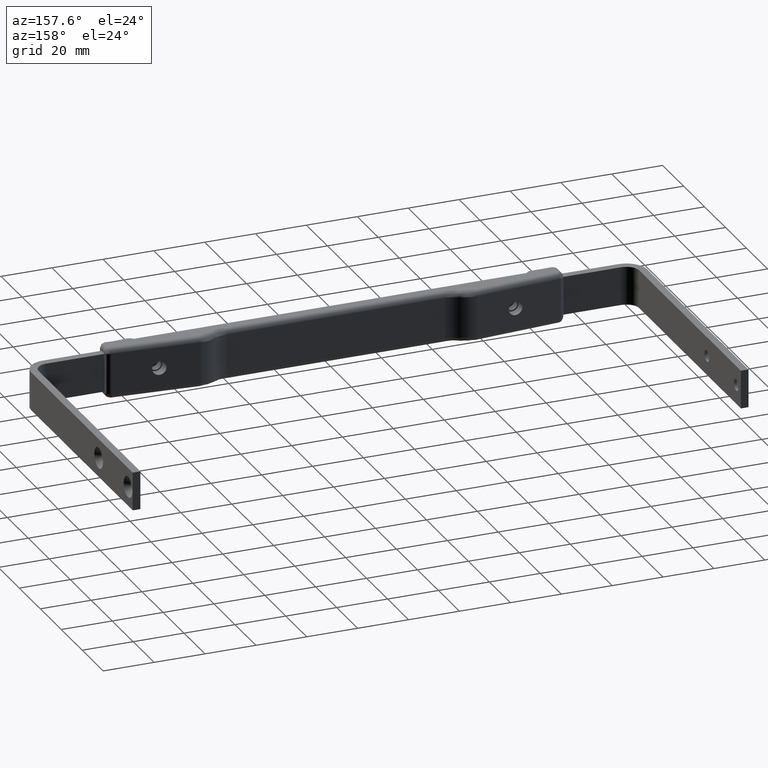
[diagram: clean part render]
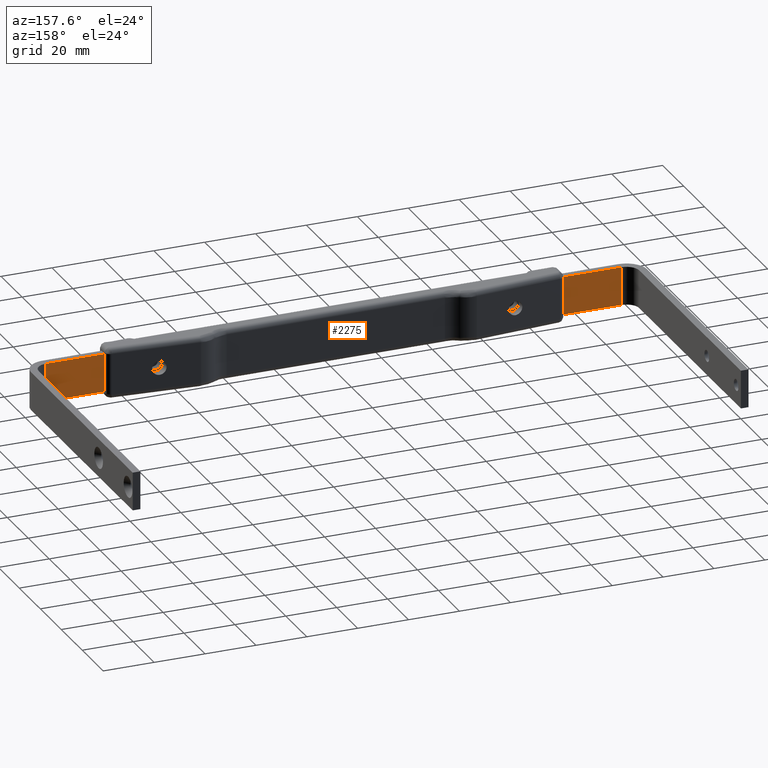
[diagram: same view with one face highlighted and labeled with its STEP entity id]
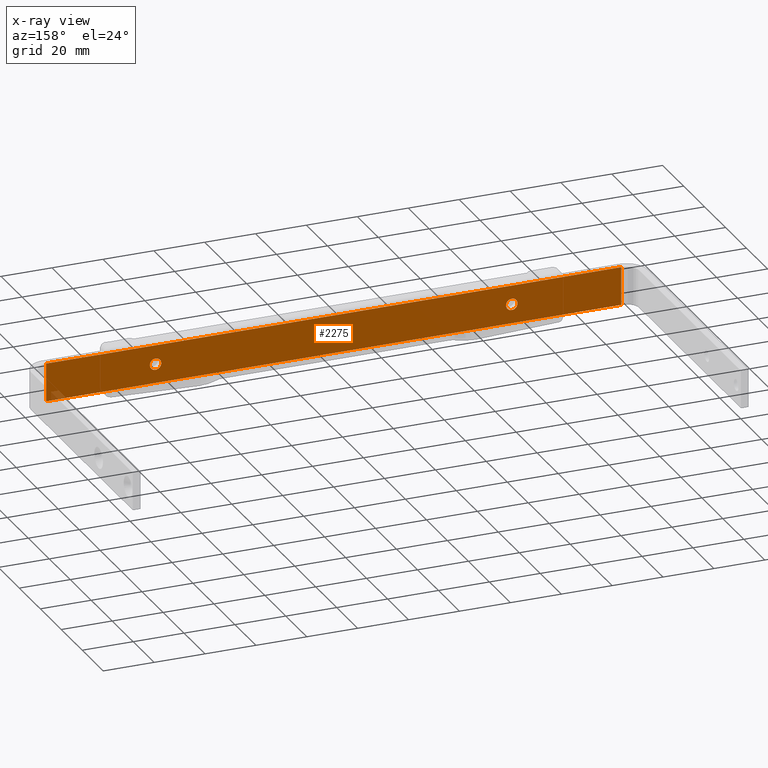
[diagram: x-ray of the same camera — body ghosted, the highlighted face saturated]
A machine part, auxiliary view. The second image highlights one B-rep face of the part: STEP entity #2275.
The next image is the same camera in x-ray: the body ghosted, the highlighted face saturated — about 0% of this face is hidden behind the body in this view.
In plain terms, the highlighted face is a freeform B-spline surface patch.
Its self-contained STEP definition (entity closure, byte-faithful):
#62=CARTESIAN_POINT('',(-67.750000000000000,0.0,-3.000000000000225));
#63=VERTEX_POINT('',#62);
#64=CARTESIAN_POINT('',(-69.823467034557439,-2.243064000895215,-3.000000000000226));
#65=VERTEX_POINT('',#64);
#66=CARTESIAN_POINT('',(-67.750000000000000,0.0,-3.000000000000225));
#67=CARTESIAN_POINT('',(-67.750000000000014,-2.079878606128802,-3.000000000000225));
#68=CARTESIAN_POINT('',(-69.823467034557439,-2.243064000895215,-3.000000000000226));
#76=(BOUNDED_CURVE()B_SPLINE_CURVE(2,(#66,#67,#68),.UNSPECIFIED.,.F.,.U.)B_SPLINE_CURVE_WITH_KNOTS((3,3),(0.0,0.236331300624372),.UNSPECIFIED.)CURVE()GEOMETRIC_REPRESENTATION_ITEM()RATIONAL_B_SPLINE_CURVE((1.0,0.723120658615032,0.969723356154297))REPRESENTATION_ITEM(''));
#77=EDGE_CURVE('',#63,#65,#76,.T.);
#118=CARTESIAN_POINT('',(-70.176532965442590,2.243064000895215,-3.000000000000225));
#119=VERTEX_POINT('',#118);
#125=CARTESIAN_POINT('',(-70.176532965442590,2.243064000895215,-3.000000000000225));
#126=CARTESIAN_POINT('',(-70.088402740822431,2.250000000000000,-3.000000000000225));
#127=CARTESIAN_POINT('',(-70.0,2.250000000000000,-3.000000000000225));
#128=CARTESIAN_POINT('',(-67.750000000000000,2.250000000000000,-3.000000000000226));
#129=CARTESIAN_POINT('',(-67.750000000000000,0.0,-3.000000000000225));
#137=(BOUNDED_CURVE()B_SPLINE_CURVE(2,(#125,#126,#127,#128,#129),.UNSPECIFIED.,.F.,.U.)B_SPLINE_CURVE_WITH_KNOTS((3,2,3),(0.736331300624372,0.750000000000000,1.0),.UNSPECIFIED.)CURVE()GEOMETRIC_REPRESENTATION_ITEM()RATIONAL_B_SPLINE_CURVE((0.969723356154295,0.983986122571515,1.0,0.707106781186547,1.0))REPRESENTATION_ITEM(''));
#138=EDGE_CURVE('',#119,#63,#137,.T.);
#161=CARTESIAN_POINT('',(-72.250000000000014,0.0,-3.000000000000225));
#162=VERTEX_POINT('',#161);
#163=CARTESIAN_POINT('',(-69.823467034557439,-2.243064000895215,-3.000000000000225));
#164=CARTESIAN_POINT('',(-69.911597259177569,-2.250000000000000,-3.000000000000226));
#165=CARTESIAN_POINT('',(-70.0,-2.250000000000000,-3.000000000000225));
#166=CARTESIAN_POINT('',(-72.250000000000028,-2.250000000000000,-3.000000000000226));
#167=CARTESIAN_POINT('',(-72.250000000000014,0.0,-3.000000000000225));
#175=(BOUNDED_CURVE()B_SPLINE_CURVE(2,(#163,#164,#165,#166,#167),.UNSPECIFIED.,.F.,.U.)B_SPLINE_CURVE_WITH_KNOTS((3,2,3),(0.236331300624372,0.250000000000000,0.500000000000000),.UNSPECIFIED.)CURVE()GEOMETRIC_REPRESENTATION_ITEM()RATIONAL_B_SPLINE_CURVE((0.969723356154297,0.983986122571516,1.0,0.707106781186547,1.0))REPRESENTATION_ITEM(''));
#176=EDGE_CURVE('',#65,#162,#175,.T.);
#178=CARTESIAN_POINT('',(-72.250000000000014,0.0,-3.000000000000225));
#179=CARTESIAN_POINT('',(-72.250000000000014,2.079878606128780,-3.000000000000226));
#180=CARTESIAN_POINT('',(-70.176532965442590,2.243064000895215,-3.000000000000225));
#188=(BOUNDED_CURVE()B_SPLINE_CURVE(2,(#178,#179,#180),.UNSPECIFIED.,.F.,.U.)B_SPLINE_CURVE_WITH_KNOTS((3,3),(0.500000000000000,0.736331300624371),.UNSPECIFIED.)CURVE()GEOMETRIC_REPRESENTATION_ITEM()RATIONAL_B_SPLINE_CURVE((1.0,0.723120658615034,0.969723356154293))REPRESENTATION_ITEM(''));
#189=EDGE_CURVE('',#162,#119,#188,.T.);
#244=CARTESIAN_POINT('',(72.250000000000014,0.0,-3.000000000000225));
#245=VERTEX_POINT('',#244);
#246=CARTESIAN_POINT('',(70.176532965442576,-2.243064000895215,-3.000000000000225));
#247=VERTEX_POINT('',#246);
#248=CARTESIAN_POINT('',(72.250000000000014,0.0,-3.000000000000225));
#249=CARTESIAN_POINT('',(72.250000000000028,-2.079878606128788,-3.000000000000225));
#250=CARTESIAN_POINT('',(70.176532965442576,-2.243064000895215,-3.000000000000225));
#258=(BOUNDED_CURVE()B_SPLINE_CURVE(2,(#248,#249,#250),.UNSPECIFIED.,.F.,.U.)B_SPLINE_CURVE_WITH_KNOTS((3,3),(0.0,0.236331300624371),.UNSPECIFIED.)CURVE()GEOMETRIC_REPRESENTATION_ITEM()RATIONAL_B_SPLINE_CURVE((1.0,0.723120658615033,0.969723356154295))REPRESENTATION_ITEM(''));
#259=EDGE_CURVE('',#245,#247,#258,.T.);
#300=CARTESIAN_POINT('',(69.823467034557410,2.243064000895214,-3.000000000000225));
#301=VERTEX_POINT('',#300);
#307=CARTESIAN_POINT('',(69.823467034557410,2.243064000895215,-3.000000000000225));
#308=CARTESIAN_POINT('',(69.911597259177555,2.250000000000000,-3.000000000000225));
#309=CARTESIAN_POINT('',(70.0,2.250000000000000,-3.000000000000225));
#310=CARTESIAN_POINT('',(72.250000000000028,2.250000000000000,-3.000000000000226));
#311=CARTESIAN_POINT('',(72.250000000000014,0.0,-3.000000000000225));
#319=(BOUNDED_CURVE()B_SPLINE_CURVE(2,(#307,#308,#309,#310,#311),.UNSPECIFIED.,.F.,.U.)B_SPLINE_CURVE_WITH_KNOTS((3,2,3),(0.736331300624371,0.750000000000000,1.0),.UNSPECIFIED.)CURVE()GEOMETRIC_REPRESENTATION_ITEM()RATIONAL_B_SPLINE_CURVE((0.969723356154293,0.983986122571514,1.0,0.707106781186547,1.0))REPRESENTATION_ITEM(''));
#320=EDGE_CURVE('',#301,#245,#319,.T.);
#343=CARTESIAN_POINT('',(67.750000000000000,0.0,-3.000000000000225));
#344=VERTEX_POINT('',#343);
#345=CARTESIAN_POINT('',(70.176532965442576,-2.243064000895215,-3.000000000000225));
#346=CARTESIAN_POINT('',(70.088402740822445,-2.250000000000000,-3.000000000000226));
#347=CARTESIAN_POINT('',(70.0,-2.250000000000000,-3.000000000000225));
#348=CARTESIAN_POINT('',(67.750000000000000,-2.250000000000000,-3.000000000000226));
#349=CARTESIAN_POINT('',(67.750000000000000,0.0,-3.000000000000225));
#357=(BOUNDED_CURVE()B_SPLINE_CURVE(2,(#345,#346,#347,#348,#349),.UNSPECIFIED.,.F.,.U.)B_SPLINE_CURVE_WITH_KNOTS((3,2,3),(0.236331300624371,0.250000000000000,0.500000000000000),.UNSPECIFIED.)CURVE()GEOMETRIC_REPRESENTATION_ITEM()RATIONAL_B_SPLINE_CURVE((0.969723356154295,0.983986122571515,1.0,0.707106781186547,1.0))REPRESENTATION_ITEM(''));
#358=EDGE_CURVE('',#247,#344,#357,.T.);
#360=CARTESIAN_POINT('',(67.750000000000000,0.0,-3.000000000000225));
#361=CARTESIAN_POINT('',(67.750000000000000,2.079878606128780,-3.000000000000226));
#362=CARTESIAN_POINT('',(69.823467034557410,2.243064000895215,-3.000000000000225));
#370=(BOUNDED_CURVE()B_SPLINE_CURVE(2,(#360,#361,#362),.UNSPECIFIED.,.F.,.U.)B_SPLINE_CURVE_WITH_KNOTS((3,3),(0.500000000000000,0.736331300624371),.UNSPECIFIED.)CURVE()GEOMETRIC_REPRESENTATION_ITEM()RATIONAL_B_SPLINE_CURVE((1.0,0.723120658615034,0.969723356154293))REPRESENTATION_ITEM(''));
#371=EDGE_CURVE('',#344,#301,#370,.T.);
#1780=CARTESIAN_POINT('',(-113.0,-7.500000000000000,-3.000000000000200));
#1781=VERTEX_POINT('',#1780);
#1795=CARTESIAN_POINT('',(113.0,-7.500000000000000,-3.0));
#1796=VERTEX_POINT('',#1795);
#1797=CARTESIAN_POINT('',(113.0,-7.500000000000000,-3.0));
#1798=CARTESIAN_POINT('',(-113.0,-7.500000000000000,-3.000000000000200));
#1799=QUASI_UNIFORM_CURVE('',1,(#1797,#1798),.UNSPECIFIED.,.F.,.U.);
#1800=EDGE_CURVE('',#1796,#1781,#1799,.T.);
#1948=CARTESIAN_POINT('',(113.0,7.499999999999840,-3.0));
#1949=VERTEX_POINT('',#1948);
#1963=CARTESIAN_POINT('',(-113.0,7.499999999999840,-3.000000000000200));
#1964=VERTEX_POINT('',#1963);
#1965=CARTESIAN_POINT('',(113.0,7.499999999999840,-3.0));
#1966=CARTESIAN_POINT('',(-113.0,7.499999999999840,-3.000000000000200));
#1967=QUASI_UNIFORM_CURVE('',1,(#1965,#1966),.UNSPECIFIED.,.F.,.U.);
#1968=EDGE_CURVE('',#1949,#1964,#1967,.T.);
#2065=CARTESIAN_POINT('',(-113.0,7.499999999999840,-3.000000000000200));
#2066=CARTESIAN_POINT('',(-113.0,-7.500000000000000,-3.000000000000200));
#2067=QUASI_UNIFORM_CURVE('',1,(#2065,#2066),.UNSPECIFIED.,.F.,.U.);
#2068=EDGE_CURVE('',#1964,#1781,#2067,.T.);
#2088=CARTESIAN_POINT('',(113.0,7.499999999999840,-3.0));
#2089=CARTESIAN_POINT('',(113.0,-7.500000000000000,-3.0));
#2090=QUASI_UNIFORM_CURVE('',1,(#2088,#2089),.UNSPECIFIED.,.F.,.U.);
#2091=EDGE_CURVE('',#1949,#1796,#2090,.T.);
#2252=CARTESIAN_POINT('',(-124.288699561968200,-8.249249970927080,-3.000000000000200));
#2253=CARTESIAN_POINT('',(124.288705623760510,-8.249249970927080,-3.000000000000200));
#2254=CARTESIAN_POINT('',(-124.288699561968200,8.249250373258274,-3.000000000000200));
#2255=CARTESIAN_POINT('',(124.288705623760510,8.249250373258274,-3.000000000000200));
#2256=B_SPLINE_SURFACE_WITH_KNOTS('',1,1,((#2252,#2254),(#2253,#2255)),.UNSPECIFIED.,.F.,.F.,.U.,(2,2),(2,2),(0.0,248.577405185728710),(0.0,16.498500344185349),.UNSPECIFIED.);
#2257=ORIENTED_EDGE('',*,*,#1800,.T.);
#2258=ORIENTED_EDGE('',*,*,#2068,.F.);
#2259=ORIENTED_EDGE('',*,*,#1968,.F.);
#2260=ORIENTED_EDGE('',*,*,#2091,.T.);
#2261=EDGE_LOOP('',(#2257,#2258,#2259,#2260));
#2262=FACE_OUTER_BOUND('',#2261,.T.);
#2263=ORIENTED_EDGE('',*,*,#371,.F.);
#2264=ORIENTED_EDGE('',*,*,#358,.F.);
#2265=ORIENTED_EDGE('',*,*,#259,.F.);
#2266=ORIENTED_EDGE('',*,*,#320,.F.);
#2267=EDGE_LOOP('',(#2263,#2264,#2265,#2266));
#2268=FACE_BOUND('',#2267,.T.);
#2269=ORIENTED_EDGE('',*,*,#189,.F.);
#2270=ORIENTED_EDGE('',*,*,#176,.F.);
#2271=ORIENTED_EDGE('',*,*,#77,.F.);
#2272=ORIENTED_EDGE('',*,*,#138,.F.);
#2273=EDGE_LOOP('',(#2269,#2270,#2271,#2272));
#2274=FACE_BOUND('',#2273,.T.);
#2275=ADVANCED_FACE('',(#2262,#2268,#2274),#2256,.F.);